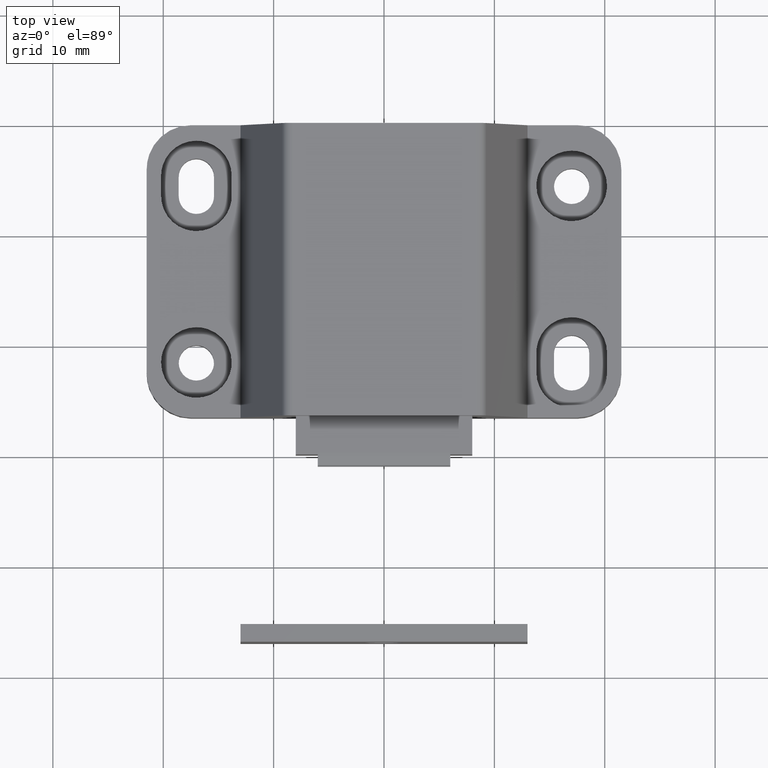
[diagram: clean part render]
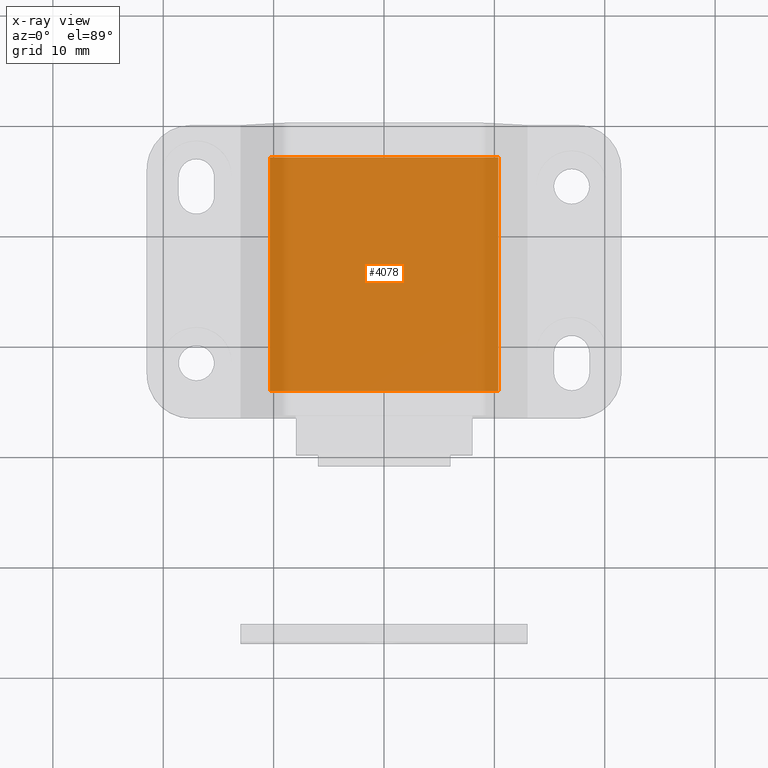
[diagram: x-ray — body ghosted, one internal face saturated and labeled with its STEP entity id]
A machine part, top view, then the same camera in x-ray: the body is ghosted and one INTERNAL B-rep face — a face not visible from any outside direction — is saturated and labeled: STEP entity #4078.
In plain terms, the highlighted face is a freeform B-spline surface patch.
Its self-contained STEP definition (entity closure, byte-faithful):
#4043=CARTESIAN_POINT('',(-11.383963009829399,-25.106441508957190,4.0));
#4044=CARTESIAN_POINT('',(-11.383963009829399,-1.843554923755573,4.0));
#4045=CARTESIAN_POINT('',(11.383968565046681,-25.106441508957190,4.0));
#4046=CARTESIAN_POINT('',(11.383968565046681,-1.843554923755573,4.0));
#4047=B_SPLINE_SURFACE_WITH_KNOTS('',1,1,((#4043,#4045),(#4044,#4046)),.UNSPECIFIED.,.F.,.F.,.U.,(2,2),(2,2),(0.0,23.262886585201620),(0.0,22.767931574876080),.UNSPECIFIED.);
#4048=CARTESIAN_POINT('',(-10.349998000000021,-2.899998000000000,4.0));
#4049=VERTEX_POINT('',#4048);
#4050=CARTESIAN_POINT('',(-10.349998000000021,-24.049999000000000,4.0));
#4051=VERTEX_POINT('',#4050);
#4052=CARTESIAN_POINT('',(-10.349998000000021,-2.899998000000000,4.0));
#4053=CARTESIAN_POINT('',(-10.349998000000021,-24.049999000000000,4.0));
#4054=QUASI_UNIFORM_CURVE('',1,(#4052,#4053),.UNSPECIFIED.,.F.,.U.);
#4055=EDGE_CURVE('',#4049,#4051,#4054,.T.);
#4056=ORIENTED_EDGE('',*,*,#4055,.T.);
#4057=CARTESIAN_POINT('',(10.350002999999999,-24.049999000000000,4.0));
#4058=VERTEX_POINT('',#4057);
#4059=CARTESIAN_POINT('',(10.350002999999999,-24.049999000000000,4.0));
#4060=CARTESIAN_POINT('',(-10.349998000000021,-24.049999000000000,4.0));
#4061=QUASI_UNIFORM_CURVE('',1,(#4059,#4060),.UNSPECIFIED.,.F.,.U.);
#4062=EDGE_CURVE('',#4058,#4051,#4061,.T.);
#4063=ORIENTED_EDGE('',*,*,#4062,.F.);
#4064=CARTESIAN_POINT('',(10.350002999999999,-2.899998000000000,4.0));
#4065=VERTEX_POINT('',#4064);
#4066=CARTESIAN_POINT('',(10.350002999999999,-2.899998000000000,4.0));
#4067=CARTESIAN_POINT('',(10.350002999999999,-24.049999000000000,4.0));
#4068=QUASI_UNIFORM_CURVE('',1,(#4066,#4067),.UNSPECIFIED.,.F.,.U.);
#4069=EDGE_CURVE('',#4065,#4058,#4068,.T.);
#4070=ORIENTED_EDGE('',*,*,#4069,.F.);
#4071=CARTESIAN_POINT('',(10.350002999999999,-2.899998000000000,4.0));
#4072=CARTESIAN_POINT('',(-10.349998000000021,-2.899998000000000,4.0));
#4073=QUASI_UNIFORM_CURVE('',1,(#4071,#4072),.UNSPECIFIED.,.F.,.U.);
#4074=EDGE_CURVE('',#4065,#4049,#4073,.T.);
#4075=ORIENTED_EDGE('',*,*,#4074,.T.);
#4076=EDGE_LOOP('',(#4056,#4063,#4070,#4075));
#4077=FACE_OUTER_BOUND('',#4076,.T.);
#4078=ADVANCED_FACE('',(#4077),#4047,.F.);